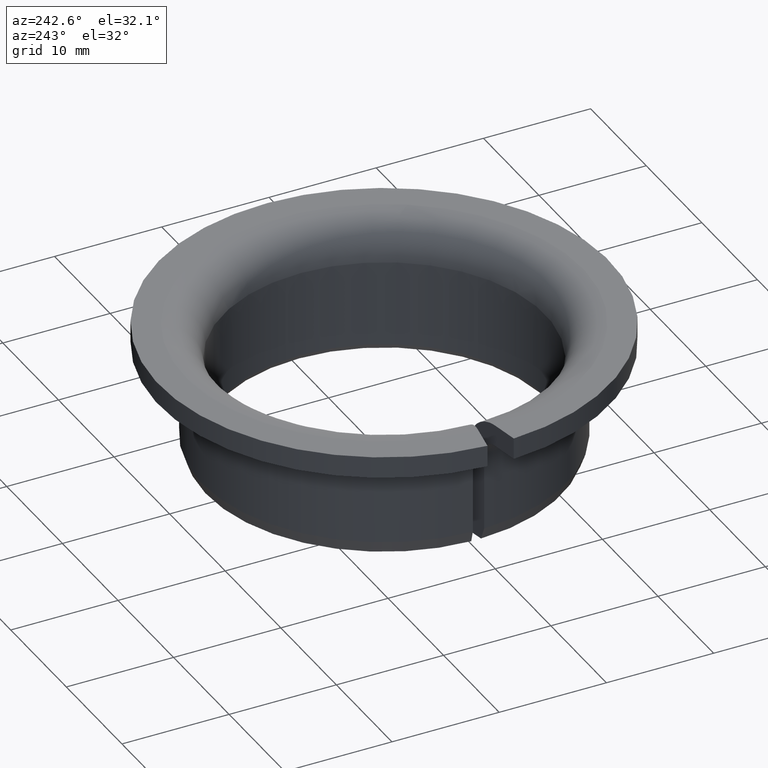
[diagram: clean part render]
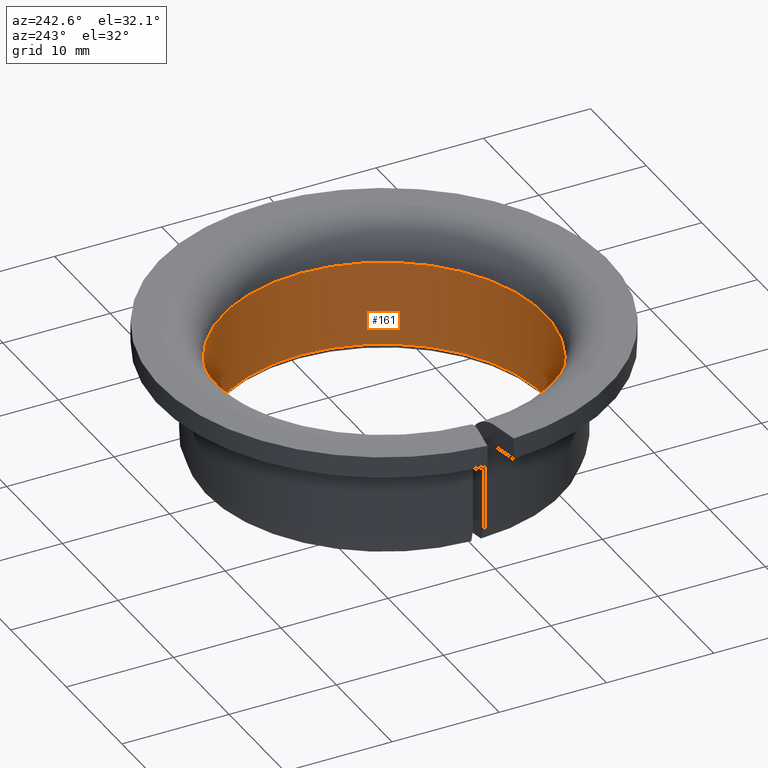
[diagram: same view with one face highlighted and labeled with its STEP entity id]
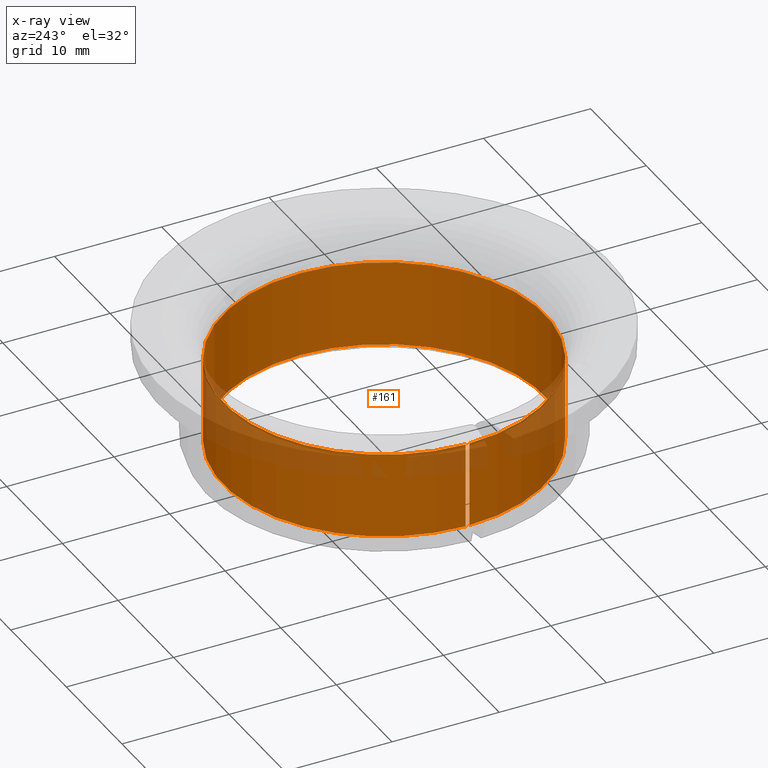
[diagram: x-ray of the same camera — body ghosted, the highlighted face saturated]
A machine part, auxiliary view. The second image highlights one B-rep face of the part: STEP entity #161.
The next image is the same camera in x-ray: the body ghosted, the highlighted face saturated — about 17% of this face is hidden behind the body in this view.
In plain terms, the highlighted cylindrical surface (partial cylindrical patch) has radius 15 mm, axis along (-0, 0, -1).
Its self-contained STEP definition (entity closure, byte-faithful):
#161=ADVANCED_FACE('',(#183),#184,.F.);
#183=FACE_OUTER_BOUND('',#208,.T.);
#184=CYLINDRICAL_SURFACE('',#209,0.015);
#208=EDGE_LOOP('',(#278,#279,#280,#281));
#209=AXIS2_PLACEMENT_3D('',#282,#283,#284);
#278=ORIENTED_EDGE('',*,*,#324,.T.);
#279=ORIENTED_EDGE('',*,*,#338,.T.);
#280=ORIENTED_EDGE('',*,*,#325,.F.);
#281=ORIENTED_EDGE('',*,*,#321,.F.);
#282=CARTESIAN_POINT('',(0.0,0.0,0.0));
#283=DIRECTION('',(0.0,-6.12323399573677E-017,-1.0));
#284=DIRECTION('',(0.0,1.0,-6.12323399573677E-017));
#321=EDGE_CURVE('',#359,#342,#361,.F.);
#324=EDGE_CURVE('',#359,#364,#366,.T.);
#325=EDGE_CURVE('',#342,#367,#368,.T.);
#338=EDGE_CURVE('',#364,#367,#387,.F.);
#342=VERTEX_POINT('',#392);
#359=VERTEX_POINT('',#447);
#361=LINE('',#452,#453);
#364=VERTEX_POINT('',#456);
#366=CIRCLE('',#461,0.015);
#367=VERTEX_POINT('',#462);
#368=CIRCLE('',#463,0.015);
#387=LINE('',#516,#517);
#392=CARTESIAN_POINT('',(0.0149989657335363,-0.000176144611625668,0.0085));
#447=CARTESIAN_POINT('',(0.0149989657335363,-0.000176144611625668,0.0005));
#452=CARTESIAN_POINT('',(0.0149989657335363,-0.000176144611625668,1.57384602559416E-019));
#453=VECTOR('',#531,1.0);
#456=CARTESIAN_POINT('',(0.0149989657335363,0.000176144611625669,0.0005));
#461=AXIS2_PLACEMENT_3D('',#535,#536,#537);
#462=CARTESIAN_POINT('',(0.0149989657335363,0.000176144611625669,0.0085));
#463=AXIS2_PLACEMENT_3D('',#538,#539,#540);
#516=CARTESIAN_POINT('',(0.0149989657335363,0.000176144611625669,-1.66361981914086E-019));
#517=VECTOR('',#563,1.0);
#531=DIRECTION('',(0.0,-6.12323399573677E-017,-1.0));
#535=CARTESIAN_POINT('',(0.0,0.0,0.0005));
#536=DIRECTION('',(0.0,-6.12323399573677E-017,-1.0));
#537=DIRECTION('',(0.0,1.0,-6.12323399573677E-017));
#538=CARTESIAN_POINT('',(0.0,0.0,0.0085));
#539=DIRECTION('',(0.0,-6.12323399573677E-017,-1.0));
#540=DIRECTION('',(0.0,1.0,-6.12323399573677E-017));
#563=DIRECTION('',(0.0,-6.12323399573677E-017,-1.0));